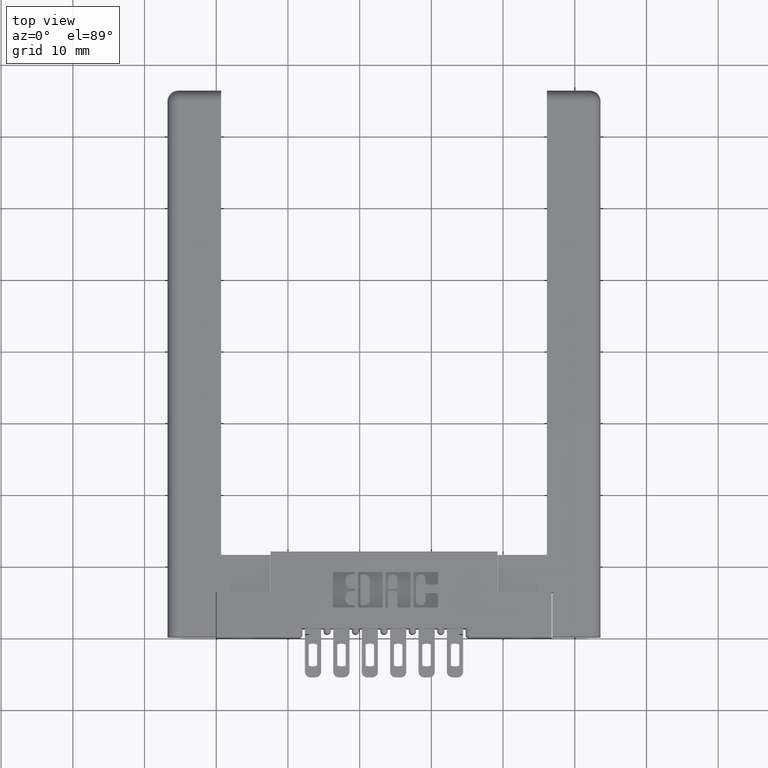
[diagram: clean part render]
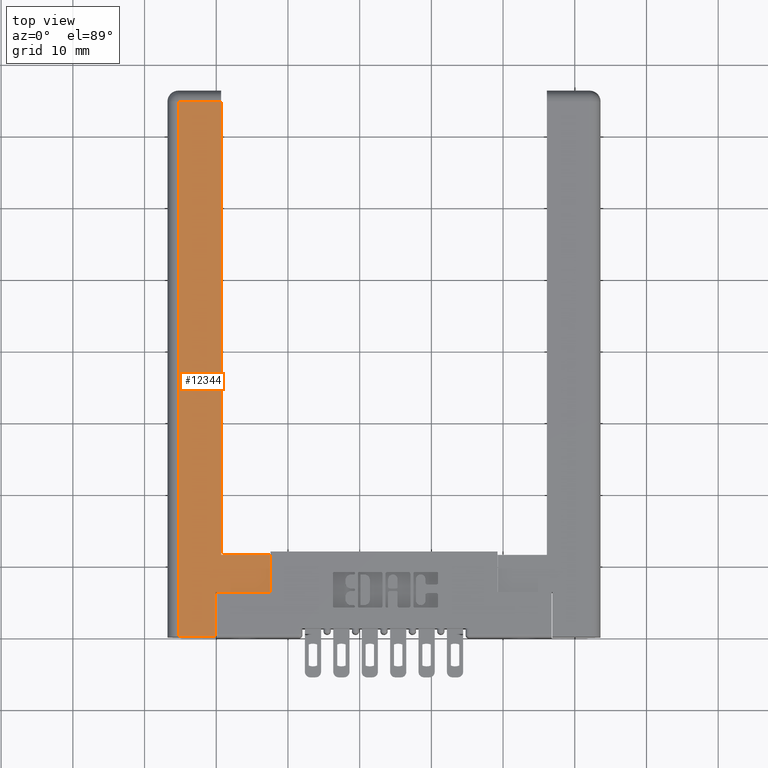
[diagram: same view with one face highlighted and labeled with its STEP entity id]
A machine part, top view. The second image highlights one B-rep face of the part: STEP entity #12344.
In plain terms, the highlighted planar face has unit normal (0, 0, -1).
Its self-contained STEP definition (entity closure, byte-faithful):
#774 = CARTESIAN_POINT ( 'NONE',  ( 0.5650000000000067200, 0.4500000000000004000, 0.0000000000000000000 ) ) ;
#923 = VECTOR ( 'NONE', #9489, 39.37007874015748100 ) ;
#1015 = EDGE_CURVE ( 'NONE', #4492, #9741, #11018, .T. ) ;
#1092 = VECTOR ( 'NONE', #10725, 39.37007874015748100 ) ;
#1300 = VECTOR ( 'NONE', #7074, 39.37007874015748100 ) ;
#1681 = VERTEX_POINT ( 'NONE', #9521 ) ;
#1709 = VECTOR ( 'NONE', #4968, 39.37007874015748100 ) ;
#2301 = CARTESIAN_POINT ( 'NONE',  ( 0.2950000000000032600, 0.4500000000000002300, -8.878505979408856000E-016 ) ) ;
#2303 = CARTESIAN_POINT ( 'NONE',  ( 0.2950000000000065300, 2.940000000000007100, -8.878505979408856000E-016 ) ) ;
#2436 = DIRECTION ( 'NONE',  ( -1.000000000000000000, -7.120336040201832800E-016, -4.510281037539672600E-017 ) ) ;
#2795 = ORIENTED_EDGE ( 'NONE', *, *, #12535, .T. ) ;
#3005 = CARTESIAN_POINT ( 'NONE',  ( 0.06150000000000342700, 2.940000000000007100, -8.878505979408856000E-016 ) ) ;
#4122 = CARTESIAN_POINT ( 'NONE',  ( 0.06150000000000342700, 2.940000000000007100, -8.878505979408856000E-016 ) ) ;
#4145 = CARTESIAN_POINT ( 'NONE',  ( 0.2650000000000033400, 0.2450000000000000500, -8.878505979408856000E-016 ) ) ;
#4177 = VERTEX_POINT ( 'NONE', #5861 ) ;
#4386 = LINE ( 'NONE', #9354, #923 ) ;
#4492 = VERTEX_POINT ( 'NONE', #4145 ) ;
#4968 = DIRECTION ( 'NONE',  ( 5.915108984173514200E-016, 1.000000000000000000, -2.334284690065039000E-016 ) ) ;
#5391 = DIRECTION ( 'NONE',  ( -7.120336040201873200E-016, -1.000000000000000000, 2.334284690065040000E-016 ) ) ;
#5699 = VECTOR ( 'NONE', #6324, 39.37007874015748100 ) ;
#5766 = CARTESIAN_POINT ( 'NONE',  ( 0.0000000000000000000, 0.0000000000000000000, 0.0000000000000000000 ) ) ;
#5778 = AXIS2_PLACEMENT_3D ( 'NONE', #5766, #12802, #9824 ) ;
#5847 = EDGE_CURVE ( 'NONE', #4177, #1681, #4386, .T. ) ;
#5861 = CARTESIAN_POINT ( 'NONE',  ( 0.06149999999999987400, 4.161799677847901200E-017, 0.0000000000000000000 ) ) ;
#5971 = VECTOR ( 'NONE', #5391, 39.37007874015748100 ) ;
#6027 = CARTESIAN_POINT ( 'NONE',  ( 0.2950000000000065300, 3.000000000000006700, -8.878505979408856000E-016 ) ) ;
#6128 = EDGE_LOOP ( 'NONE', ( #2795, #12967, #7054, #10464, #10226, #12496, #8091, #8898 ) ) ;
#6194 = LINE ( 'NONE', #774, #11993 ) ;
#6324 = DIRECTION ( 'NONE',  ( 1.000000000000000000, 8.258606037561937000E-016, 4.510281037539667600E-017 ) ) ;
#6380 = CARTESIAN_POINT ( 'NONE',  ( 0.5650000000000063900, 0.2450000000000008600, 0.0000000000000000000 ) ) ;
#6746 = PLANE ( 'NONE',  #5778 ) ;
#6789 = DIRECTION ( 'NONE',  ( 1.045185798369489500E-015, 1.000000000000000000, -2.334284690065038500E-016 ) ) ;
#7054 = ORIENTED_EDGE ( 'NONE', *, *, #12090, .T. ) ;
#7074 = DIRECTION ( 'NONE',  ( -1.000000000000000000, -7.120336040201832800E-016, -4.510281037539672600E-017 ) ) ;
#7389 = FACE_OUTER_BOUND ( 'NONE', #6128, .T. ) ;
#8091 = ORIENTED_EDGE ( 'NONE', *, *, #8333, .T. ) ;
#8333 = EDGE_CURVE ( 'NONE', #9741, #11927, #6194, .T. ) ;
#8347 = LINE ( 'NONE', #6027, #1709 ) ;
#8435 = CARTESIAN_POINT ( 'NONE',  ( 0.06150000000000015200, 4.161799677847901200E-017, 0.0000000000000000000 ) ) ;
#8865 = EDGE_CURVE ( 'NONE', #11927, #9514, #11659, .T. ) ;
#8898 = ORIENTED_EDGE ( 'NONE', *, *, #8865, .T. ) ;
#9277 = CARTESIAN_POINT ( 'NONE',  ( 0.5650000000000067200, 0.4500000000000004000, 0.0000000000000000000 ) ) ;
#9354 = CARTESIAN_POINT ( 'NONE',  ( 0.2650000000000033400, 1.952844464220938100E-016, -8.878505979408856000E-016 ) ) ;
#9426 = VERTEX_POINT ( 'NONE', #3005 ) ;
#9489 = DIRECTION ( 'NONE',  ( 1.000000000000000000, 7.164262422741187300E-016, 4.510281037539672600E-017 ) ) ;
#9514 = VERTEX_POINT ( 'NONE', #2301 ) ;
#9521 = CARTESIAN_POINT ( 'NONE',  ( 0.2650000000000033400, 1.952844464220938100E-016, -8.878505979408856000E-016 ) ) ;
#9658 = VECTOR ( 'NONE', #2436, 39.37007874015748100 ) ;
#9741 = VERTEX_POINT ( 'NONE', #6380 ) ;
#9824 = DIRECTION ( 'NONE',  ( -1.000000000000000000, -7.120336040201832800E-016, -4.510281037539672600E-017 ) ) ;
#10015 = EDGE_CURVE ( 'NONE', #11450, #9426, #12610, .T. ) ;
#10226 = ORIENTED_EDGE ( 'NONE', *, *, #12409, .T. ) ;
#10464 = ORIENTED_EDGE ( 'NONE', *, *, #5847, .T. ) ;
#10525 = LINE ( 'NONE', #8435, #5971 ) ;
#10725 = DIRECTION ( 'NONE',  ( 5.726536043434383500E-016, 1.000000000000000000, -2.334284690065039000E-016 ) ) ;
#11018 = LINE ( 'NONE', #12380, #5699 ) ;
#11450 = VERTEX_POINT ( 'NONE', #2303 ) ;
#11504 = CARTESIAN_POINT ( 'NONE',  ( 0.2950000000000032600, 0.4500000000000002300, -8.878505979408856000E-016 ) ) ;
#11659 = LINE ( 'NONE', #11504, #9658 ) ;
#11681 = CARTESIAN_POINT ( 'NONE',  ( 0.2650000000000033400, 0.2450000000000000500, -8.878505979408856000E-016 ) ) ;
#11927 = VERTEX_POINT ( 'NONE', #9277 ) ;
#11993 = VECTOR ( 'NONE', #6789, 39.37007874015748100 ) ;
#12090 = EDGE_CURVE ( 'NONE', #9426, #4177, #10525, .T. ) ;
#12344 = ADVANCED_FACE ( 'NONE', ( #7389 ), #6746, .F. ) ;
#12380 = CARTESIAN_POINT ( 'NONE',  ( 0.5650000000000063900, 0.2450000000000008600, 0.0000000000000000000 ) ) ;
#12409 = EDGE_CURVE ( 'NONE', #1681, #4492, #12578, .T. ) ;
#12496 = ORIENTED_EDGE ( 'NONE', *, *, #1015, .T. ) ;
#12535 = EDGE_CURVE ( 'NONE', #9514, #11450, #8347, .T. ) ;
#12578 = LINE ( 'NONE', #11681, #1092 ) ;
#12610 = LINE ( 'NONE', #4122, #1300 ) ;
#12802 = DIRECTION ( 'NONE',  ( 4.510281037539655900E-017, 2.334284690065026700E-016, -1.000000000000000000 ) ) ;
#12967 = ORIENTED_EDGE ( 'NONE', *, *, #10015, .T. ) ;